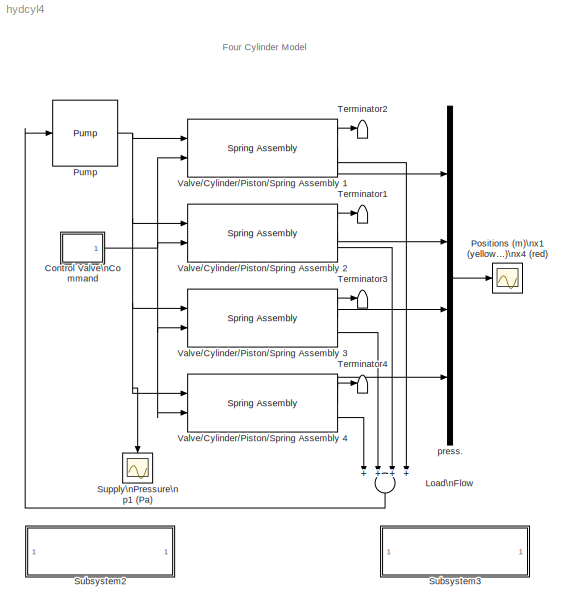
MODEL hydcyl4
KIND model
CONFIG PreLoadFcn = load newhcd
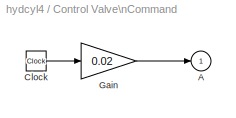
BLOCK [SubSystem] Control Valve\nCommand
  MaskDisplay = plot(0,0,100,100,[98,0],[96,0])
  MaskIconFrame = on
  MaskIconOpaque = on
  MaskIconRotate = none
  MaskIconUnits = autoscale
  MaskType = Ramp
  MinAlgLoopOccurrences = off
  Ports = [0, 1]
  PropExecContextAcrossSSBoundary = on
  RTWSystemCode = Auto
  ShowPortLabels = off
  TreatAsAtomicUnit = off
BLOCK [Outport] Control Valve\nCommand/A
  IconDisplay = Port number
  InitialOutput = 0
BLOCK [Clock] Control Valve\nCommand/Clock
  Decimation = 10
BLOCK [Gain] Control Valve\nCommand/Gain
  Gain = 0.02
BLOCK [Sum] Load\nFlow
  Inputs = ++++
  Ports = [4, 1]
BLOCK [Scope] Positions (m)\nx1 (yellow)\nx2 (purple)\nx3 (blue)\nx4 (red)
  DataFormat = Array
  LimitDataPoints = off
  NumInputPorts = 1
  Ports = [1]
  TickLabels = on
  TimeRange = 0.1
  YMax = 0.019
  YMin = 0
BLOCK [Reference] Pump  REF=hydlib/Pump  (lib defined in mdl_a1138ae370f5)
  C2 = C2
  Ports = [1, 1]
  Qpump = Qmax*[1 1 0.5 0.5]
  ShowPortLabels = on
  SourceBlock = hydlib/Pump
  SourceType = Pump
  p10 = Qmax/C2/2
  t = [0 0.05 0.051 0.1]
BLOCK [SubSystem] Subsystem2
  MaskDisplay = disp('Double click to run the \\nSimulation for 0.1 seconds')
  MaskIconFrame = on
  MaskIconOpaque = on
  MaskIconRotate = none
  MaskIconUnits = autoscale
  MaskType = Button
  MinAlgLoopOccurrences = off
  OpenFcn = sim(get_param(0,'CurrentSystem'),0.1)
  Ports = []
  PropExecContextAcrossSSBoundary = on
  RTWSystemCode = Auto
  ShowPortLabels = off
  TreatAsAtomicUnit = off
BLOCK [SubSystem] Subsystem3
  MaskDisplay = disp('Double click for a model\\n with two hydraulic cylinders\\n  interconnected by a rigid rod')
  MaskIconFrame = on
  MaskIconOpaque = on
  MaskIconRotate = none
  MaskIconUnits = autoscale
  MaskType = Button
  MinAlgLoopOccurrences = off
  OpenFcn = hydrod
  Ports = []
  PropExecContextAcrossSSBoundary = on
  RTWSystemCode = Auto
  ShowPortLabels = off
  TreatAsAtomicUnit = off
BLOCK [Scope] Supply\nPressure\np1 (Pa)
  DataFormat = Array
  LimitDataPoints = off
  NumInputPorts = 1
  Ports = [1]
  TickLabels = on
  TimeRange = 0.1
  YMax = 1.8e+06
  YMin = 200000
BLOCK [Terminator] Terminator1
BLOCK [Terminator] Terminator2
BLOCK [Terminator] Terminator3
BLOCK [Terminator] Terminator4
BLOCK [Reference] Valve//Cylinder//Piston//Spring Assembly 1  REF=hydlib/Valve//Cylinder//Piston//Spring Assembly  (lib defined in mdl_a1138ae370f5)
  Ac = Ac
  C1 = C1
  Cd = Cd
  K = K
  Ports = [2, 3]
  ShowPortLabels = on
  SourceBlock = hydlib/Valve//Cylinder//Piston//Spring Assembly
  SourceType = Valve/Cylinder/Piston/Spring Assembly
  V30 = V30
  beta = Beta
  rho = rho
BLOCK [Reference] Valve//Cylinder//Piston//Spring Assembly 2  REF=hydlib/Valve//Cylinder//Piston//Spring Assembly  (lib defined in mdl_a1138ae370f5)
  Ac = Ac/4
  C1 = C1
  Cd = Cd
  K = K/4
  Ports = [2, 3]
  ShowPortLabels = on
  SourceBlock = hydlib/Valve//Cylinder//Piston//Spring Assembly
  SourceType = Valve/Cylinder/Piston/Spring Assembly
  V30 = V30
  beta = Beta
  rho = rho
BLOCK [Reference] Valve//Cylinder//Piston//Spring Assembly 3  REF=hydlib/Valve//Cylinder//Piston//Spring Assembly  (lib defined in mdl_a1138ae370f5)
  Ac = Ac*4
  C1 = C1
  Cd = Cd
  K = K*4
  Ports = [2, 3]
  ShowPortLabels = on
  SourceBlock = hydlib/Valve//Cylinder//Piston//Spring Assembly
  SourceType = Valve/Cylinder/Piston/Spring Assembly
  V30 = V30
  beta = Beta
  rho = rho
BLOCK [Reference] Valve//Cylinder//Piston//Spring Assembly 4  REF=hydlib/Valve//Cylinder//Piston//Spring Assembly  (lib defined in mdl_a1138ae370f5)
  Ac = Ac
  C1 = C1
  Cd = Cd
  K = K
  Ports = [2, 3]
  ShowPortLabels = on
  SourceBlock = hydlib/Valve//Cylinder//Piston//Spring Assembly
  SourceType = Valve/Cylinder/Piston/Spring Assembly
  V30 = V30
  beta = Beta/1000
  rho = rho
BLOCK [Mux] press.
  DisplayOption = bar
  Ports = [4, 1]
ANNOTATION (root): Four Cylinder Model
LINE Control Valve\nCommand/Clock:1 -> Control Valve\nCommand/Gain:1
LINE Control Valve\nCommand/Gain:1 -> Control Valve\nCommand/A:1
NET Control Valve\nCommand:1 -> Valve//Cylinder//Piston//Spring Assembly 1:2, Valve//Cylinder//Piston//Spring Assembly 2:2, Valve//Cylinder//Piston//Spring Assembly 3:2, Valve//Cylinder//Piston//Spring Assembly 4:2
LINE Load\nFlow:1 -> Pump:1
NET Pump:1 -> Supply\nPressure\np1 (Pa):1, Valve//Cylinder//Piston//Spring Assembly 1:1, Valve//Cylinder//Piston//Spring Assembly 2:1, Valve//Cylinder//Piston//Spring Assembly 3:1, Valve//Cylinder//Piston//Spring Assembly 4:1
LINE Valve//Cylinder//Piston//Spring Assembly 1:1 -> Terminator2:1
LINE Valve//Cylinder//Piston//Spring Assembly 1:2 -> press.:1
LINE Valve//Cylinder//Piston//Spring Assembly 1:3 -> Load\nFlow:4
LINE Valve//Cylinder//Piston//Spring Assembly 2:1 -> Terminator1:1
LINE Valve//Cylinder//Piston//Spring Assembly 2:2 -> press.:2
LINE Valve//Cylinder//Piston//Spring Assembly 2:3 -> Load\nFlow:3
LINE Valve//Cylinder//Piston//Spring Assembly 3:1 -> Terminator3:1
LINE Valve//Cylinder//Piston//Spring Assembly 3:2 -> press.:3
LINE Valve//Cylinder//Piston//Spring Assembly 3:3 -> Load\nFlow:2
LINE Valve//Cylinder//Piston//Spring Assembly 4:1 -> Terminator4:1
LINE Valve//Cylinder//Piston//Spring Assembly 4:2 -> press.:4
LINE Valve//Cylinder//Piston//Spring Assembly 4:3 -> Load\nFlow:1
LINE press.:1 -> Positions (m)\nx1 (yellow)\nx2 (purple)\nx3 (blue)\nx4 (red):1
note: NET lines group one-source signal fan-out (src -> all destinations, sorted); 1:1 wires keep LINE
